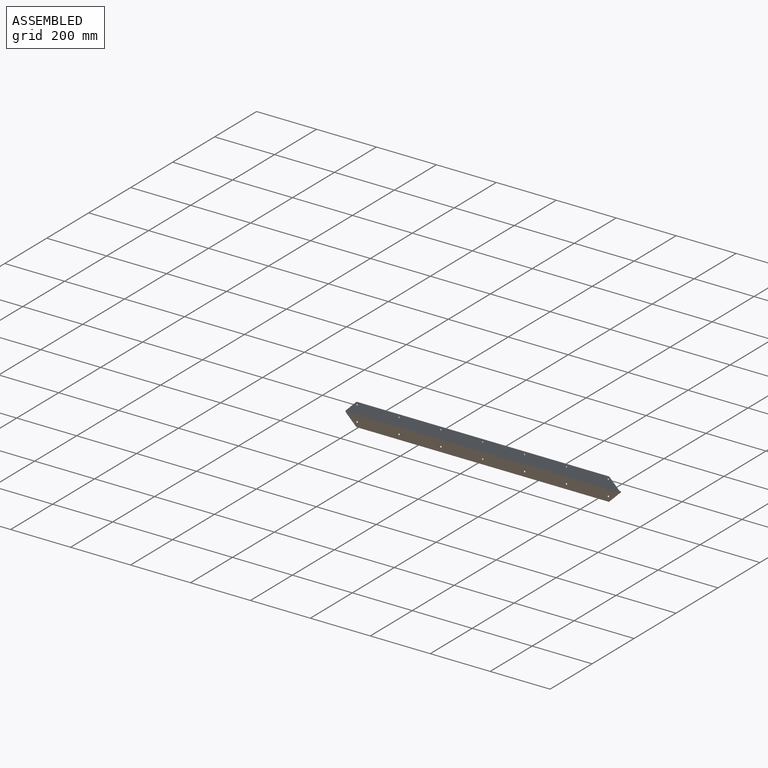
[diagram: assembled view]
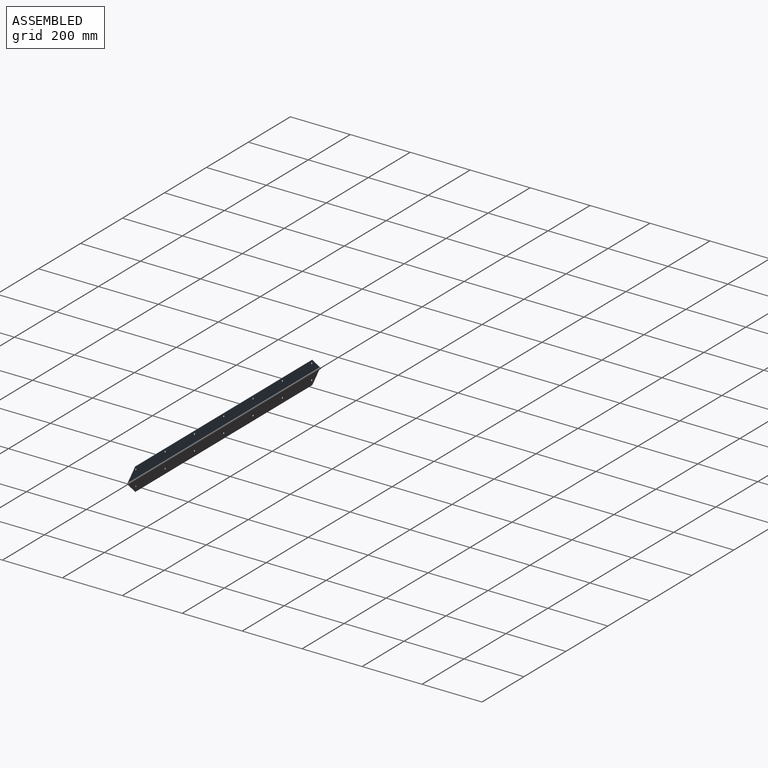
[diagram: assembled view, second angle]
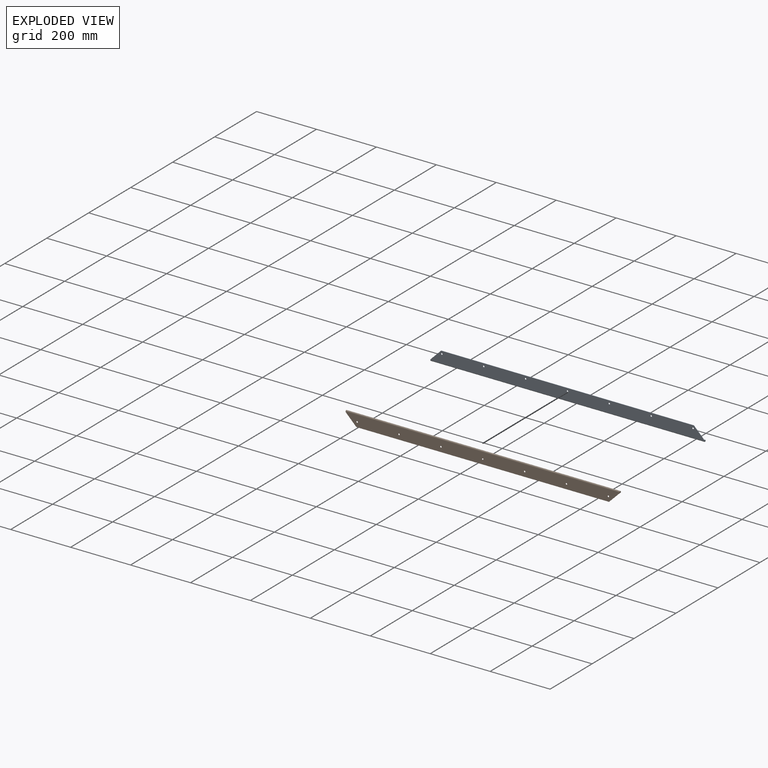
[diagram: exploded view]
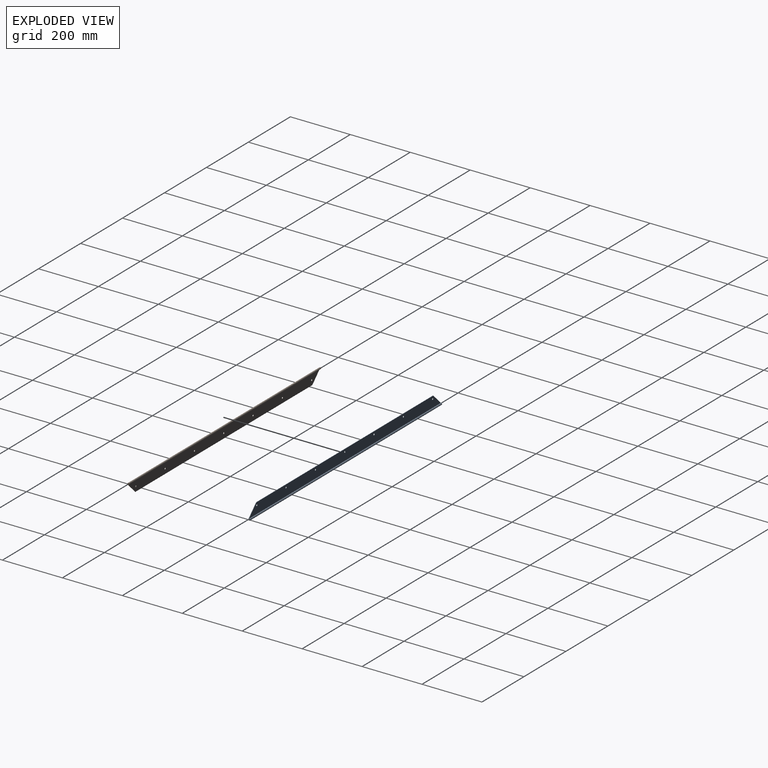
[diagram: exploded view, second angle]
ASSEMBLY  parts=2 mates=2
PART A: 15 faces, bbox 914.4x5.7x41 mm
  f0: plane 842.95x1.27mm, normal (0,0,-1), area 1070.5mm2, adj f1,f4,f13,f14
  f1: plane 914.4x35.72mm, normal (0,1,0), area 31240.1mm2, adj f0,f5,f6,f7,f8,f9,f10,f11
  f2: plane 5.72x5.72mm, normal (1,0,0), area 26.5mm2, adj f4,f5,f14
  f3: plane 5.72x5.72mm, normal (-1,0,0), area 26.5mm2, adj f4,f5,f13
  f4: plane 914.4x38.1mm, normal (0,-1,0), area 33412.6mm2, adj f0,f2,f3,f5,f6,f7,f8,f9
  f5: cylinder r=2.86mm len=914.4mm, axis (-1,0,0), area 13852.1mm2, adj f1,f2,f3,f4
  f6: cylinder r=2.61mm len=5.22mm, axis (0,-1,0), area 20.8mm2, adj f1,f4
  f7: cylinder r=2.61mm len=5.22mm, axis (0,-1,0), area 20.8mm2, adj f1,f4
  f8: cylinder r=2.61mm len=5.22mm, axis (0,-1,0), area 20.8mm2, adj f1,f4
  f9: cylinder r=2.61mm len=5.22mm, axis (0,-1,0), area 20.8mm2, adj f1,f4
  f10: cylinder r=2.61mm len=5.22mm, axis (0,-1,0), area 20.8mm2, adj f1,f4
  f11: cylinder r=2.61mm len=5.22mm, axis (0,-1,0), area 20.8mm2, adj f1,f4
  f12: cylinder r=2.61mm len=5.22mm, axis (0,-1,0), area 20.8mm2, adj f1,f4
  f13: plane 35.72x35.72mm, normal (-0.71,0,-0.71), area 64.2mm2, adj f0,f1,f3,f4
  f14: plane 35.72x35.72mm, normal (0.71,0,-0.71), area 64.2mm2, adj f0,f1,f2,f4
PART B: 15 faces, bbox 914.4x5.7x41 mm
  f0: plane 842.95x1.27mm, normal (0,0,-1), area 1070.5mm2, adj f3,f4,f13,f14
  f1: plane 5.72x5.72mm, normal (1,0,0), area 26.5mm2, adj f3,f5,f14
  f2: plane 5.72x5.72mm, normal (-1,0,0), area 26.5mm2, adj f3,f5,f13
  f3: plane 914.4x38.1mm, normal (0,-1,0), area 33412.6mm2, adj f0,f1,f2,f5,f6,f7,f8,f9
  f4: plane 914.4x35.72mm, normal (0,1,0), area 31240.1mm2, adj f0,f5,f6,f7,f8,f9,f10,f11
  f5: cylinder r=2.86mm len=914.4mm, axis (-1,0,0), area 13852.1mm2, adj f1,f2,f3,f4
  f6: cylinder r=2.61mm len=5.22mm, axis (0,-1,0), area 20.8mm2, adj f3,f4
  f7: cylinder r=2.61mm len=5.22mm, axis (0,-1,0), area 20.8mm2, adj f3,f4
  f8: cylinder r=2.61mm len=5.22mm, axis (0,-1,0), area 20.8mm2, adj f3,f4
  f9: cylinder r=2.61mm len=5.22mm, axis (0,-1,0), area 20.8mm2, adj f3,f4
  f10: cylinder r=2.61mm len=5.22mm, axis (0,-1,0), area 20.8mm2, adj f3,f4
  f11: cylinder r=2.61mm len=5.22mm, axis (0,-1,0), area 20.8mm2, adj f3,f4
  f12: cylinder r=2.61mm len=5.22mm, axis (0,-1,0), area 20.8mm2, adj f3,f4
  f13: plane 35.72x35.72mm, normal (-0.71,0,-0.71), area 64.2mm2, adj f0,f2,f3,f4
  f14: plane 35.72x35.72mm, normal (0.71,0,-0.71), area 64.2mm2, adj f0,f1,f3,f4
PLACE A rot(axis=(0,1,0),180deg) t=(689.83,60.27,-51.05)mm
PLACE B rot(axis=(1,0,0),0deg) t=(-224.57,60.27,-127.25)mm fixed
MATE cylindrical A.f5 <-> B.f5  axis (1,0,0) through (232.63,63.13,-89.15)mm
MATE planar A.f3 <-> B.f1  axis (1,0,0) through (689.83,63.04,-89.09)mm
